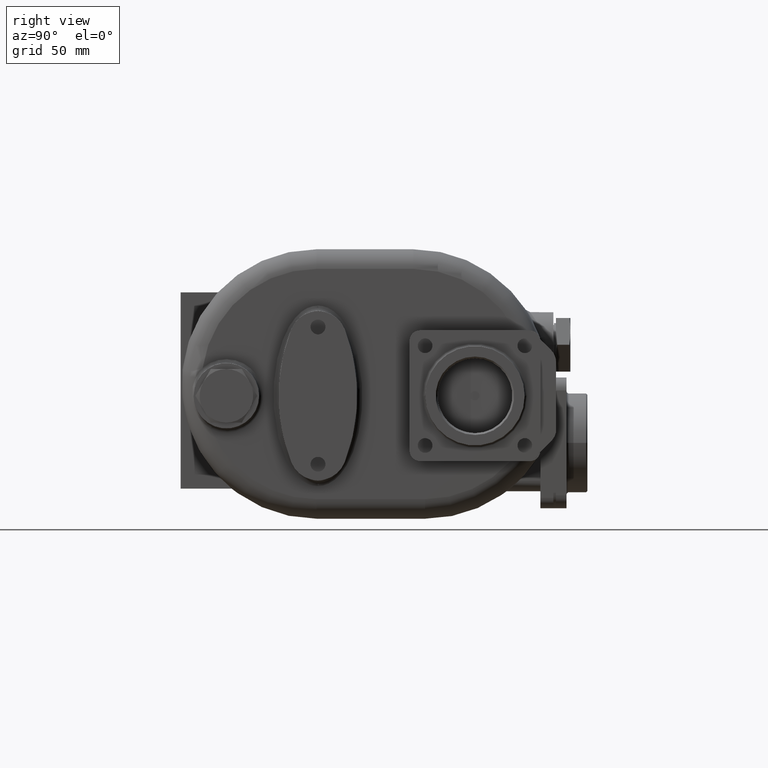
[diagram: clean part render]
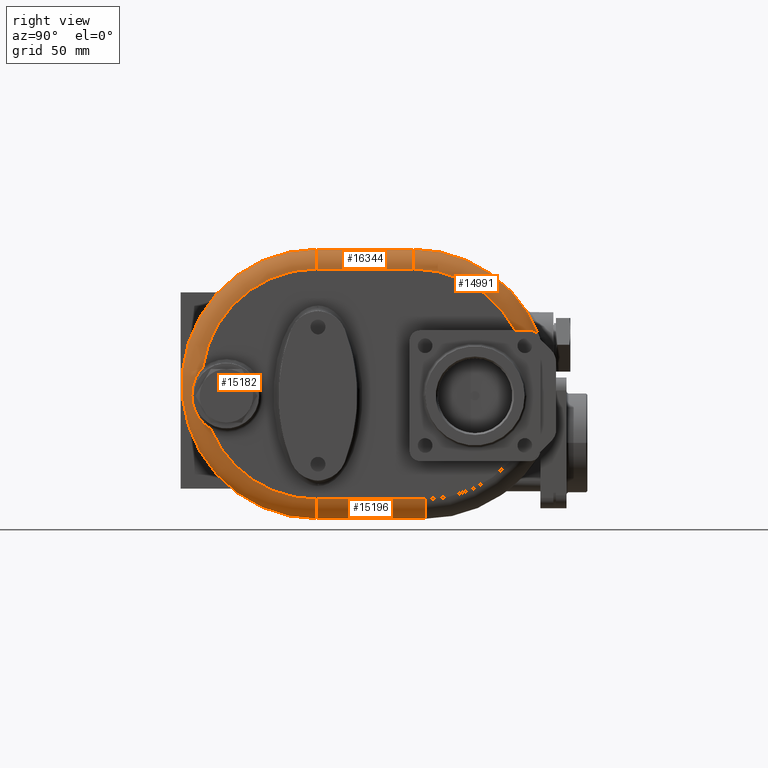
[diagram: same view with one multi-face feature highlighted, each face labeled with its STEP entity id]
A machine part, right view. The highlighted faces form ONE feature: a constant-radius fillet chain: 4 tangent blend faces with common blend radius 15 mm. The faces share edges in the B-rep.
Their STEP definitions:
[1] entity #14991 (Torus):
#1214=CARTESIAN_POINT('',(5.E1,1.779157701947E2,0.E0));
#1215=DIRECTION('',(1.E0,0.E0,0.E0));
#1216=DIRECTION('',(0.E0,9.377287347924E-1,3.473684210526E-1));
#1217=AXIS2_PLACEMENT_3D('',#1214,#1215,#1216);
#1315=CARTESIAN_POINT('',(5.E1,2.745018298783E2,3.577894736842E1));
#1316=CARTESIAN_POINT('',(5.020101568759E1,2.744487320866E2,3.592228603159E1));
#1317=CARTESIAN_POINT('',(5.060249652659E1,2.743344736254E2,3.620553010682E1));
#1318=CARTESIAN_POINT('',(5.120334129808E1,2.741391444655E2,3.661971496347E1));
#1319=CARTESIAN_POINT('',(5.180035544472E1,2.739210585520E2,3.702098342893E1));
#1320=CARTESIAN_POINT('',(5.239261927575E1,2.736810473854E2,3.740822842585E1));
#1321=CARTESIAN_POINT('',(5.297770715870E1,2.734206845886E2,3.777943482370E1));
#1322=CARTESIAN_POINT('',(5.355460768159E1,2.731411313518E2,3.813360938305E1));
#1323=CARTESIAN_POINT('',(5.412144644352E1,2.728440693341E2,3.846930785738E1));
#1324=CARTESIAN_POINT('',(5.467693405492E1,2.725310662987E2,3.878556754388E1));
#1325=CARTESIAN_POINT('',(5.522001441876E1,2.722036469466E2,3.908164385540E1));
#1326=CARTESIAN_POINT('',(5.574922764545E1,2.718637083335E2,3.935668889727E1));
#1327=CARTESIAN_POINT('',(5.626410762916E1,2.715125990081E2,3.961046902161E1));
#1328=CARTESIAN_POINT('',(5.676313042400E1,2.711524708822E2,3.984232935963E1));
#1329=CARTESIAN_POINT('',(5.724623979118E1,2.707845164796E2,4.005241309078E1));
#1330=CARTESIAN_POINT('',(5.771233586124E1,2.704107439488E2,4.024047448791E1));
#1331=CARTESIAN_POINT('',(5.816149476330E1,2.700322936357E2,4.040684924267E1));
#1332=CARTESIAN_POINT('',(5.859304292659E1,2.696509300537E2,4.055164034883E1));
#1333=CARTESIAN_POINT('',(5.900692632686E1,2.692679379552E2,4.067526694222E1));
#1334=CARTESIAN_POINT('',(5.940318984220E1,2.688844839738E2,4.077820581610E1));
#1335=CARTESIAN_POINT('',(5.978159558659E1,2.685020303532E2,4.086093231822E1));
#1336=CARTESIAN_POINT('',(6.014277300916E1,2.681211401708E2,4.092413994413E1));
#1337=CARTESIAN_POINT('',(6.048643811599E1,2.677433062624E2,4.096837962110E1));
#1338=CARTESIAN_POINT('',(6.081337131469E1,2.673688521621E2,4.099438788250E1));
#1339=CARTESIAN_POINT('',(6.102008609275E1,2.671223352401E2,4.1E1));
#1340=CARTESIAN_POINT('',(6.112067991398E1,2.67E2,4.1E1));
#1342=CARTESIAN_POINT('',(6.112067991398E1,2.67E2,4.1E1));
#1343=CARTESIAN_POINT('',(6.124565001584E1,2.668480200152E2,4.1E1));
#1344=CARTESIAN_POINT('',(6.149078620999E1,2.665384004637E2,4.1E1));
#1345=CARTESIAN_POINT('',(6.184414580978E1,2.660564268643E2,4.1E1));
#1346=CARTESIAN_POINT('',(6.218207201909E1,2.655578763460E2,4.1E1));
#1347=CARTESIAN_POINT('',(6.250425511505E1,2.650426557518E2,4.1E1));
#1348=CARTESIAN_POINT('',(6.280966920086E1,2.645118260200E2,4.1E1));
#1349=CARTESIAN_POINT('',(6.309805032539E1,2.639652059889E2,4.1E1));
#1350=CARTESIAN_POINT('',(6.336835612465E1,2.634040835667E2,4.1E1));
#1351=CARTESIAN_POINT('',(6.362024812072E1,2.628284644681E2,4.1E1));
#1352=CARTESIAN_POINT('',(6.385292212239E1,2.622393509741E2,4.1E1));
#1353=CARTESIAN_POINT('',(6.406579616394E1,2.616374317181E2,4.1E1));
#1354=CARTESIAN_POINT('',(6.425838612283E1,2.610230802420E2,4.1E1));
#1355=CARTESIAN_POINT('',(6.442990867048E1,2.603978397649E2,4.1E1));
#1356=CARTESIAN_POINT('',(6.458006311532E1,2.597617005900E2,4.1E1));
#1357=CARTESIAN_POINT('',(6.470815493818E1,2.591162983433E2,4.1E1));
#1358=CARTESIAN_POINT('',(6.481381315798E1,2.584622349579E2,4.1E1));
#1359=CARTESIAN_POINT('',(6.489659738734E1,2.578004056922E2,4.1E1));
#1360=CARTESIAN_POINT('',(6.495606582080E1,2.571326389062E2,4.1E1));
#1361=CARTESIAN_POINT('',(6.499197908370E1,2.564589945034E2,4.1E1));
#1362=CARTESIAN_POINT('',(6.5E1,2.560075071648E2,4.1E1));
#1363=CARTESIAN_POINT('',(6.5E1,2.557810384470E2,4.1E1));
#1374=CARTESIAN_POINT('',(6.5E1,1.779157701947E2,0.E0));
#1375=DIRECTION('',(1.E0,0.E0,0.E0));
#1376=DIRECTION('',(0.E0,8.848325937759E-1,4.659090909091E-1));
#1377=AXIS2_PLACEMENT_3D('',#1374,#1375,#1376);
#2759=CARTESIAN_POINT('',(5.E1,1.779157701947E2,8.8E1));
#2760=DIRECTION('',(0.E0,-1.E0,0.E0));
#2761=DIRECTION('',(1.E0,0.E0,0.E0));
#2762=AXIS2_PLACEMENT_3D('',#2759,#2760,#2761);
#11969=CARTESIAN_POINT('',(6.5E1,1.779157701947E2,8.8E1));
#11971=VERTEX_POINT('',#11969);
#11973=CARTESIAN_POINT('',(5.E1,1.779157701947E2,1.03E2));
#11974=VERTEX_POINT('',#11973);
#11975=CARTESIAN_POINT('',(6.5E1,2.557810384470E2,4.1E1));
#11976=VERTEX_POINT('',#11975);
#11977=CARTESIAN_POINT('',(5.E1,2.745018298783E2,3.577894736842E1));
#11978=VERTEX_POINT('',#11977);
#11979=VERTEX_POINT('',#1340);
#14976=CARTESIAN_POINT('',(5.E1,1.779157701947E2,0.E0));
#14977=DIRECTION('',(-1.E0,0.E0,0.E0));
#14978=DIRECTION('',(0.E0,9.404855930077E-1,3.398335612399E-1));
#14979=AXIS2_PLACEMENT_3D('',#14976,#14977,#14978);
#14980=TOROIDAL_SURFACE('',#14979,8.8E1,1.5E1);
#14982=ORIENTED_EDGE('',*,*,#14981,.T.);
#14984=ORIENTED_EDGE('',*,*,#14983,.T.);
#14985=ORIENTED_EDGE('',*,*,#14965,.F.);
#14986=ORIENTED_EDGE('',*,*,#14430,.T.);
#14988=ORIENTED_EDGE('',*,*,#14987,.T.);
#14989=EDGE_LOOP('',(#14982,#14984,#14985,#14986,#14988));
#14990=FACE_OUTER_BOUND('',#14989,.F.);
#14991=ADVANCED_FACE('',(#14990),#14980,.T.);
#1218=CIRCLE('',#1217,1.03E2);
#1341=B_SPLINE_CURVE_WITH_KNOTS('',3,(#1315,#1316,#1317,#1318,#1319,#1320,#1321,
#1322,#1323,#1324,#1325,#1326,#1327,#1328,#1329,#1330,#1331,#1332,#1333,#1334,
#1335,#1336,#1337,#1338,#1339,#1340),.UNSPECIFIED.,.F.,.F.,(4,1,1,1,1,1,1,1,1,1,
1,1,1,1,1,1,1,1,1,1,1,1,1,4),(0.E0,4.347826086957E-2,8.695652173913E-2,
1.304347826087E-1,1.739130434783E-1,2.173913043478E-1,2.608695652174E-1,
3.043478260870E-1,3.478260869565E-1,3.913043478261E-1,4.347826086957E-1,
4.782608695652E-1,5.217391304348E-1,5.652173913043E-1,6.086956521739E-1,
6.521739130435E-1,6.956521739130E-1,7.391304347826E-1,7.826086956522E-1,
8.260869565217E-1,8.695652173913E-1,9.130434782609E-1,9.565217391304E-1,1.E0),
.UNSPECIFIED.);
#1364=B_SPLINE_CURVE_WITH_KNOTS('',3,(#1342,#1343,#1344,#1345,#1346,#1347,#1348,
#1349,#1350,#1351,#1352,#1353,#1354,#1355,#1356,#1357,#1358,#1359,#1360,#1361,
#1362,#1363),.UNSPECIFIED.,.F.,.F.,(4,1,1,1,1,1,1,1,1,1,1,1,1,1,1,1,1,1,1,4),(
0.E0,5.263157894737E-2,1.052631578947E-1,1.578947368421E-1,2.105263157895E-1,
2.631578947368E-1,3.157894736842E-1,3.684210526316E-1,4.210526315789E-1,
4.736842105263E-1,5.263157894737E-1,5.789473684211E-1,6.315789473684E-1,
6.842105263158E-1,7.368421052632E-1,7.894736842105E-1,8.421052631579E-1,
8.947368421053E-1,9.473684210526E-1,1.E0),.UNSPECIFIED.);
#1378=CIRCLE('',#1377,8.8E1);
#2763=CIRCLE('',#2762,1.5E1);
#14430=EDGE_CURVE('',#11978,#11979,#1341,.T.);
#14965=EDGE_CURVE('',#11978,#11974,#1218,.T.);
#14981=EDGE_CURVE('',#11976,#11971,#1378,.T.);
#14983=EDGE_CURVE('',#11971,#11974,#2763,.T.);
#14987=EDGE_CURVE('',#11979,#11976,#1364,.T.);
[2] entity #16344 (Cylinder):
#1370=DIRECTION('',(0.E0,-1.E0,0.E0));
#1371=VECTOR('',#1370,7.391577019472E1);
#1372=CARTESIAN_POINT('',(6.5E1,1.779157701947E2,8.8E1));
#1373=LINE('',#1372,#1371);
#1760=CARTESIAN_POINT('',(5.E1,1.04E2,8.8E1));
#1761=DIRECTION('',(0.E0,-1.E0,0.E0));
#1762=DIRECTION('',(1.E0,0.E0,0.E0));
#1763=AXIS2_PLACEMENT_3D('',#1760,#1761,#1762);
#2751=DIRECTION('',(0.E0,-1.E0,0.E0));
#2752=VECTOR('',#2751,7.391577019462E1);
#2753=CARTESIAN_POINT('',(5.E1,1.779157701947E2,1.03E2));
#2754=LINE('',#2753,#2752);
#2759=CARTESIAN_POINT('',(5.E1,1.779157701947E2,8.8E1));
#2760=DIRECTION('',(0.E0,-1.E0,0.E0));
#2761=DIRECTION('',(1.E0,0.E0,0.E0));
#2762=AXIS2_PLACEMENT_3D('',#2759,#2760,#2761);
#11967=CARTESIAN_POINT('',(5.E1,1.04E2,1.03E2));
#11968=VERTEX_POINT('',#11967);
#11969=CARTESIAN_POINT('',(6.5E1,1.779157701947E2,8.8E1));
#11970=CARTESIAN_POINT('',(6.5E1,1.04E2,8.8E1));
#11971=VERTEX_POINT('',#11969);
#11972=VERTEX_POINT('',#11970);
#11973=CARTESIAN_POINT('',(5.E1,1.779157701947E2,1.03E2));
#11974=VERTEX_POINT('',#11973);
#16333=CARTESIAN_POINT('',(5.E1,1.787421789659E2,8.8E1));
#16334=DIRECTION('',(0.E0,-1.E0,0.E0));
#16335=DIRECTION('',(1.E0,0.E0,0.E0));
#16336=AXIS2_PLACEMENT_3D('',#16333,#16334,#16335);
#16337=CYLINDRICAL_SURFACE('',#16336,1.5E1);
#16338=ORIENTED_EDGE('',*,*,#15001,.T.);
#16339=ORIENTED_EDGE('',*,*,#15176,.T.);
#16340=ORIENTED_EDGE('',*,*,#16326,.F.);
#16341=ORIENTED_EDGE('',*,*,#14983,.F.);
#16342=EDGE_LOOP('',(#16338,#16339,#16340,#16341));
#16343=FACE_OUTER_BOUND('',#16342,.F.);
#16344=ADVANCED_FACE('',(#16343),#16337,.T.);
#1764=CIRCLE('',#1763,1.5E1);
#2763=CIRCLE('',#2762,1.5E1);
#14983=EDGE_CURVE('',#11971,#11974,#2763,.T.);
#15001=EDGE_CURVE('',#11971,#11972,#1373,.T.);
#15176=EDGE_CURVE('',#11972,#11968,#1764,.T.);
#16326=EDGE_CURVE('',#11974,#11968,#2754,.T.);
[3] entity #15182 (Torus):
#1365=CARTESIAN_POINT('',(6.5E1,1.04E2,0.E0));
#1366=DIRECTION('',(1.E0,0.E0,0.E0));
#1367=DIRECTION('',(0.E0,0.E0,1.E0));
#1368=AXIS2_PLACEMENT_3D('',#1365,#1366,#1367);
#1388=CARTESIAN_POINT('',(6.5E1,1.04E2,0.E0));
#1389=DIRECTION('',(1.E0,0.E0,0.E0));
#1390=DIRECTION('',(0.E0,-9.210367537029E-1,-3.894756710354E-1));
#1391=AXIS2_PLACEMENT_3D('',#1388,#1389,#1390);
#1723=CARTESIAN_POINT('',(6.499999922128E1,2.294876544944E1,-3.427385476207E1));
#1724=CARTESIAN_POINT('',(6.500000070770E1,2.272236153855E1,-3.413992664537E1));
#1725=CARTESIAN_POINT('',(6.499511372207E1,2.226826679203E1,-3.386228544483E1));
#1726=CARTESIAN_POINT('',(6.497338544515E1,2.158346201643E1,-3.341588774144E1));
#1727=CARTESIAN_POINT('',(6.493766855637E1,2.089763908820E1,-3.293914950467E1));
#1728=CARTESIAN_POINT('',(6.488850972078E1,2.021274401890E1,-3.243186677359E1));
#1729=CARTESIAN_POINT('',(6.482660447602E1,1.953100730141E1,-3.189388601106E1));
#1730=CARTESIAN_POINT('',(6.475277540833E1,1.885449350835E1,-3.132512720437E1));
#1731=CARTESIAN_POINT('',(6.466792999235E1,1.818510316962E1,-3.072566175001E1));
#1732=CARTESIAN_POINT('',(6.457311211885E1,1.752494498620E1,-3.009585809262E1));
#1733=CARTESIAN_POINT('',(6.446945122099E1,1.687597113901E1,-2.943610846249E1));
#1734=CARTESIAN_POINT('',(6.435825707014E1,1.624058780246E1,-2.874746228488E1));
#1735=CARTESIAN_POINT('',(6.424098844922E1,1.562132950559E1,-2.803145118683E1));
#1736=CARTESIAN_POINT('',(6.411916745241E1,1.502047091479E1,-2.728968586155E1));
#1737=CARTESIAN_POINT('',(6.399440591323E1,1.444025390221E1,-2.652408360079E1));
#1738=CARTESIAN_POINT('',(6.386835264573E1,1.388274690855E1,-2.573679634191E1));
#1739=CARTESIAN_POINT('',(6.374264345940E1,1.334974074106E1,-2.493007006070E1));
#1740=CARTESIAN_POINT('',(6.361877749758E1,1.284238468870E1,-2.410559777595E1));
#1741=CARTESIAN_POINT('',(6.349820732396E1,1.236169019453E1,-2.326511529270E1));
#1742=CARTESIAN_POINT('',(6.338234158784E1,1.190866151970E1,-2.241078941939E1));
#1743=CARTESIAN_POINT('',(6.327256283489E1,1.148437777522E1,-2.154537918038E1));
#1744=CARTESIAN_POINT('',(6.317016212597E1,1.108979229662E1,-2.067199166201E1));
#1745=CARTESIAN_POINT('',(6.307607448357E1,1.072480403269E1,-1.979182812546E1));
#1746=CARTESIAN_POINT('',(6.299102704255E1,1.038885702009E1,-1.890480053588E1));
#1747=CARTESIAN_POINT('',(6.291574722147E1,1.008163633302E1,-1.801083179074E1));
#1748=CARTESIAN_POINT('',(6.285082637925E1,9.803084331513E0,-1.711137232627E1));
#1749=CARTESIAN_POINT('',(6.279674912535E1,9.553178981917E0,-1.620822757329E1));
#1750=CARTESIAN_POINT('',(6.275388783341E1,9.331791830110E0,-1.530284986412E1));
#1751=CARTESIAN_POINT('',(6.272247393974E1,9.138425045E0,-1.439473548811E1));
#1752=CARTESIAN_POINT('',(6.270276035452E1,8.972862712890E0,-1.348346412486E1));
#1753=CARTESIAN_POINT('',(6.269501116072E1,8.835087679762E0,-1.256837527718E1));
#1754=CARTESIAN_POINT('',(6.269910011123E1,8.724697025679E0,-1.164880209929E1));
#1755=CARTESIAN_POINT('',(6.271494090848E1,8.641537391448E0,-1.072402644825E1));
#1756=CARTESIAN_POINT('',(6.274249036526E1,8.585908031533E0,-9.793474468310E0));
#1757=CARTESIAN_POINT('',(6.276866318850E1,8.567178128751E0,-9.168466309815E0));
#1758=CARTESIAN_POINT('',(6.278367518543E1,8.562707650356E0,-8.855006509120E0));
#1760=CARTESIAN_POINT('',(5.E1,1.04E2,8.8E1));
#1761=DIRECTION('',(0.E0,-1.E0,0.E0));
#1762=DIRECTION('',(1.E0,0.E0,0.E0));
#1763=AXIS2_PLACEMENT_3D('',#1760,#1761,#1762);
#1765=CARTESIAN_POINT('',(6.278367518543E1,8.562707650356E0,-8.855006509120E0));
#1766=CARTESIAN_POINT('',(6.279830556522E1,8.558466658314E0,-8.551709612410E0));
#1767=CARTESIAN_POINT('',(6.283113875412E1,8.559090509869E0,-7.943656105551E0));
#1768=CARTESIAN_POINT('',(6.289089050867E1,8.586903488566E0,-7.027571000156E0));
#1769=CARTESIAN_POINT('',(6.296060864859E1,8.642203021581E0,-6.108774770174E0));
#1770=CARTESIAN_POINT('',(6.303975405040E1,8.725238355090E0,-5.188358250117E0));
#1771=CARTESIAN_POINT('',(6.312770977529E1,8.836403839456E0,-4.267534102759E0));
#1772=CARTESIAN_POINT('',(6.322377916787E1,8.976060866672E0,-3.347496120426E0));
#1773=CARTESIAN_POINT('',(6.332710252809E1,9.144406661228E0,-2.428871006205E0));
#1774=CARTESIAN_POINT('',(6.343678521295E1,9.341722978511E0,-1.512187363818E0));
#1775=CARTESIAN_POINT('',(6.355180432790E1,9.568216150394E0,
-5.984954641245E-1));
#1776=CARTESIAN_POINT('',(6.367081526864E1,9.823517795225E0,3.092877412653E-1));
#1777=CARTESIAN_POINT('',(6.379240663919E1,1.010704679573E1,1.208476310890E0));
#1778=CARTESIAN_POINT('',(6.391514271072E1,1.041808306421E1,2.096656979256E0));
#1779=CARTESIAN_POINT('',(6.403757385614E1,1.075576574312E1,2.971678828413E0));
#1780=CARTESIAN_POINT('',(6.415822993440E1,1.111903479763E1,3.831416487090E0));
#1781=CARTESIAN_POINT('',(6.427561863251E1,1.150654436281E1,4.673622988674E0));
#1782=CARTESIAN_POINT('',(6.438827752382E1,1.191672971700E1,5.496146075037E0));
#1783=CARTESIAN_POINT('',(6.449481608021E1,1.234788355660E1,6.297045666420E0));
#1784=CARTESIAN_POINT('',(6.459393460784E1,1.279819353991E1,7.074610665607E0));
#1785=CARTESIAN_POINT('',(6.468441532643E1,1.326562287515E1,7.827167704131E0));
#1786=CARTESIAN_POINT('',(6.476522528056E1,1.374841763429E1,8.553823528112E0));
#1787=CARTESIAN_POINT('',(6.483543862982E1,1.424484684701E1,9.253907086615E0));
#1788=CARTESIAN_POINT('',(6.489423412394E1,1.475318190690E1,9.926885864335E0));
#1789=CARTESIAN_POINT('',(6.494088664457E1,1.527168492997E1,1.057244283218E1));
#1790=CARTESIAN_POINT('',(6.497476321714E1,1.579834374542E1,1.119024029106E1));
#1791=CARTESIAN_POINT('',(6.499536647001E1,1.633139772858E1,1.178005807319E1));
#1792=CARTESIAN_POINT('',(6.500000015300E1,1.668944947799E1,1.215446594458E1));
#1793=CARTESIAN_POINT('',(6.499999906107E1,1.686908178673E1,1.233705214877E1));
#1795=CARTESIAN_POINT('',(5.E1,1.04E2,-8.8E1));
#1796=DIRECTION('',(0.E0,1.E0,0.E0));
#1797=DIRECTION('',(1.E0,0.E0,0.E0));
#1798=AXIS2_PLACEMENT_3D('',#1795,#1796,#1797);
#2769=CARTESIAN_POINT('',(5.E1,1.04E2,0.E0));
#2770=DIRECTION('',(1.E0,0.E0,0.E0));
#2771=DIRECTION('',(0.E0,0.E0,1.E0));
#2772=AXIS2_PLACEMENT_3D('',#2769,#2770,#2771);
#11963=CARTESIAN_POINT('',(6.5E1,1.04E2,-8.8E1));
#11964=VERTEX_POINT('',#11963);
#11965=CARTESIAN_POINT('',(5.E1,1.04E2,-1.03E2));
#11966=VERTEX_POINT('',#11965);
#11967=CARTESIAN_POINT('',(5.E1,1.04E2,1.03E2));
#11968=VERTEX_POINT('',#11967);
#11970=CARTESIAN_POINT('',(6.5E1,1.04E2,8.8E1));
#11972=VERTEX_POINT('',#11970);
#12034=VERTEX_POINT('',#1723);
#12035=VERTEX_POINT('',#1758);
#12037=VERTEX_POINT('',#1793);
#15165=CARTESIAN_POINT('',(5.E1,1.04E2,0.E0));
#15166=DIRECTION('',(-1.E0,0.E0,0.E0));
#15167=DIRECTION('',(0.E0,8.023300044310E-3,9.999678128102E-1));
#15168=AXIS2_PLACEMENT_3D('',#15165,#15166,#15167);
#15169=TOROIDAL_SURFACE('',#15168,8.8E1,1.5E1);
#15170=ORIENTED_EDGE('',*,*,#15086,.F.);
#15171=ORIENTED_EDGE('',*,*,#15018,.T.);
#15173=ORIENTED_EDGE('',*,*,#15172,.T.);
#15175=ORIENTED_EDGE('',*,*,#15174,.F.);
#15177=ORIENTED_EDGE('',*,*,#15176,.F.);
#15178=ORIENTED_EDGE('',*,*,#14999,.T.);
#15179=ORIENTED_EDGE('',*,*,#15159,.F.);
#15180=EDGE_LOOP('',(#15170,#15171,#15173,#15175,#15177,#15178,#15179));
#15181=FACE_OUTER_BOUND('',#15180,.F.);
#15182=ADVANCED_FACE('',(#15181),#15169,.T.);
#1369=CIRCLE('',#1368,8.8E1);
#1392=CIRCLE('',#1391,8.8E1);
#1759=B_SPLINE_CURVE_WITH_KNOTS('',3,(#1723,#1724,#1725,#1726,#1727,#1728,#1729,
#1730,#1731,#1732,#1733,#1734,#1735,#1736,#1737,#1738,#1739,#1740,#1741,#1742,
#1743,#1744,#1745,#1746,#1747,#1748,#1749,#1750,#1751,#1752,#1753,#1754,#1755,
#1756,#1757,#1758),.UNSPECIFIED.,.F.,.F.,(4,1,1,1,1,1,1,1,1,1,1,1,1,1,1,1,1,1,1,
1,1,1,1,1,1,1,1,1,1,1,1,1,1,4),(0.E0,3.030303030303E-2,6.060606060606E-2,
9.090909090909E-2,1.212121212121E-1,1.515151515152E-1,1.818181818182E-1,
2.121212121212E-1,2.424242424242E-1,2.727272727273E-1,3.030303030303E-1,
3.333333333333E-1,3.636363636364E-1,3.939393939394E-1,4.242424242424E-1,
4.545454545455E-1,4.848484848485E-1,5.151515151515E-1,5.454545454545E-1,
5.757575757576E-1,6.060606060606E-1,6.363636363636E-1,6.666666666667E-1,
6.969696969697E-1,7.272727272727E-1,7.575757575758E-1,7.878787878788E-1,
8.181818181818E-1,8.484848484848E-1,8.787878787879E-1,9.090909090909E-1,
9.393939393939E-1,9.696969696970E-1,1.E0),.UNSPECIFIED.);
#1764=CIRCLE('',#1763,1.5E1);
#1794=B_SPLINE_CURVE_WITH_KNOTS('',3,(#1765,#1766,#1767,#1768,#1769,#1770,#1771,
#1772,#1773,#1774,#1775,#1776,#1777,#1778,#1779,#1780,#1781,#1782,#1783,#1784,
#1785,#1786,#1787,#1788,#1789,#1790,#1791,#1792,#1793),.UNSPECIFIED.,.F.,.F.,(4,
1,1,1,1,1,1,1,1,1,1,1,1,1,1,1,1,1,1,1,1,1,1,1,1,1,4),(0.E0,3.846153846154E-2,
7.692307692308E-2,1.153846153846E-1,1.538461538462E-1,1.923076923077E-1,
2.307692307692E-1,2.692307692308E-1,3.076923076923E-1,3.461538461538E-1,
3.846153846154E-1,4.230769230769E-1,4.615384615385E-1,5.E-1,5.384615384615E-1,
5.769230769231E-1,6.153846153846E-1,6.538461538462E-1,6.923076923077E-1,
7.307692307692E-1,7.692307692308E-1,8.076923076923E-1,8.461538461538E-1,
8.846153846154E-1,9.230769230769E-1,9.615384615385E-1,1.E0),.UNSPECIFIED.);
#1799=CIRCLE('',#1798,1.5E1);
#2773=CIRCLE('',#2772,1.03E2);
#14999=EDGE_CURVE('',#11972,#12037,#1369,.T.);
#15018=EDGE_CURVE('',#12034,#11964,#1392,.T.);
#15086=EDGE_CURVE('',#12034,#12035,#1759,.T.);
#15159=EDGE_CURVE('',#12035,#12037,#1794,.T.);
#15172=EDGE_CURVE('',#11964,#11966,#1799,.T.);
#15174=EDGE_CURVE('',#11968,#11966,#2773,.T.);
#15176=EDGE_CURVE('',#11972,#11968,#1764,.T.);
[4] entity #15196 (Cylinder):
#1384=DIRECTION('',(0.E0,1.E0,0.E0));
#1385=VECTOR('',#1384,8.285014036194E1);
#1386=CARTESIAN_POINT('',(6.5E1,1.04E2,-8.8E1));
#1387=LINE('',#1386,#1385);
#1795=CARTESIAN_POINT('',(5.E1,1.04E2,-8.8E1));
#1796=DIRECTION('',(0.E0,1.E0,0.E0));
#1797=DIRECTION('',(1.E0,0.E0,0.E0));
#1798=AXIS2_PLACEMENT_3D('',#1795,#1796,#1797);
#1800=CARTESIAN_POINT('',(5.E1,1.868501403619E2,-8.8E1));
#1801=DIRECTION('',(0.E0,1.E0,0.E0));
#1802=DIRECTION('',(1.E0,0.E0,0.E0));
#1803=AXIS2_PLACEMENT_3D('',#1800,#1801,#1802);
#2597=DIRECTION('',(0.E0,1.E0,0.E0));
#2598=VECTOR('',#2597,8.285014036159E1);
#2599=CARTESIAN_POINT('',(5.E1,1.04E2,-1.03E2));
#2600=LINE('',#2599,#2598);
#11955=CARTESIAN_POINT('',(5.E1,1.868501403619E2,-1.03E2));
#11957=VERTEX_POINT('',#11955);
#11959=CARTESIAN_POINT('',(6.5E1,1.868501403619E2,-8.8E1));
#11961=VERTEX_POINT('',#11959);
#11963=CARTESIAN_POINT('',(6.5E1,1.04E2,-8.8E1));
#11964=VERTEX_POINT('',#11963);
#11965=CARTESIAN_POINT('',(5.E1,1.04E2,-1.03E2));
#11966=VERTEX_POINT('',#11965);
#15183=CARTESIAN_POINT('',(5.E1,1.031735912288E2,-8.8E1));
#15184=DIRECTION('',(0.E0,1.E0,0.E0));
#15185=DIRECTION('',(1.E0,0.E0,0.E0));
#15186=AXIS2_PLACEMENT_3D('',#15183,#15184,#15185);
#15187=CYLINDRICAL_SURFACE('',#15186,1.5E1);
#15188=ORIENTED_EDGE('',*,*,#15016,.T.);
#15190=ORIENTED_EDGE('',*,*,#15189,.T.);
#15192=ORIENTED_EDGE('',*,*,#15191,.F.);
#15193=ORIENTED_EDGE('',*,*,#15172,.F.);
#15194=EDGE_LOOP('',(#15188,#15190,#15192,#15193));
#15195=FACE_OUTER_BOUND('',#15194,.F.);
#15196=ADVANCED_FACE('',(#15195),#15187,.T.);
#1799=CIRCLE('',#1798,1.5E1);
#1804=CIRCLE('',#1803,1.5E1);
#15016=EDGE_CURVE('',#11964,#11961,#1387,.T.);
#15172=EDGE_CURVE('',#11964,#11966,#1799,.T.);
#15189=EDGE_CURVE('',#11961,#11957,#1804,.T.);
#15191=EDGE_CURVE('',#11966,#11957,#2600,.T.);